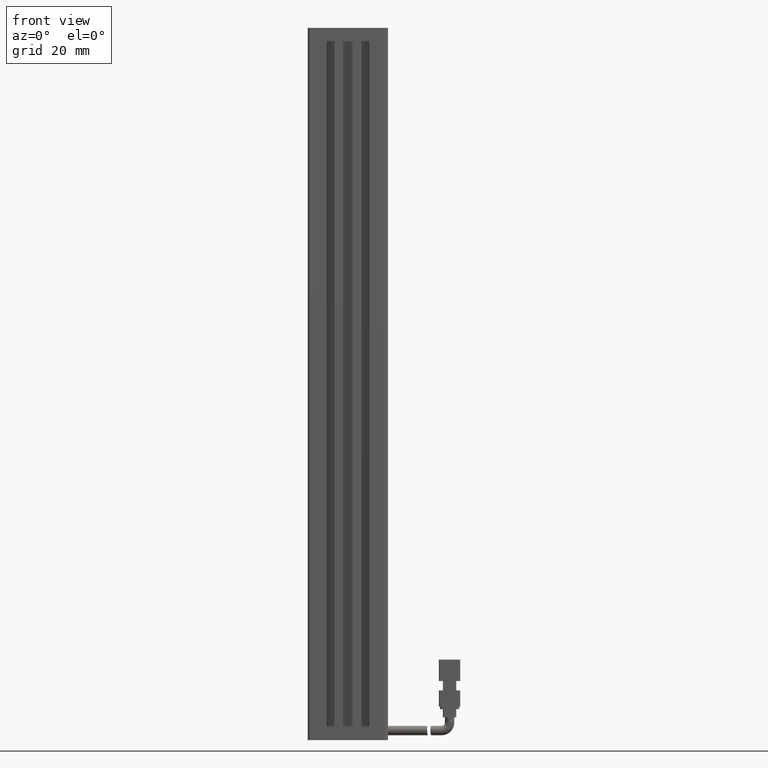
[diagram: clean part render]
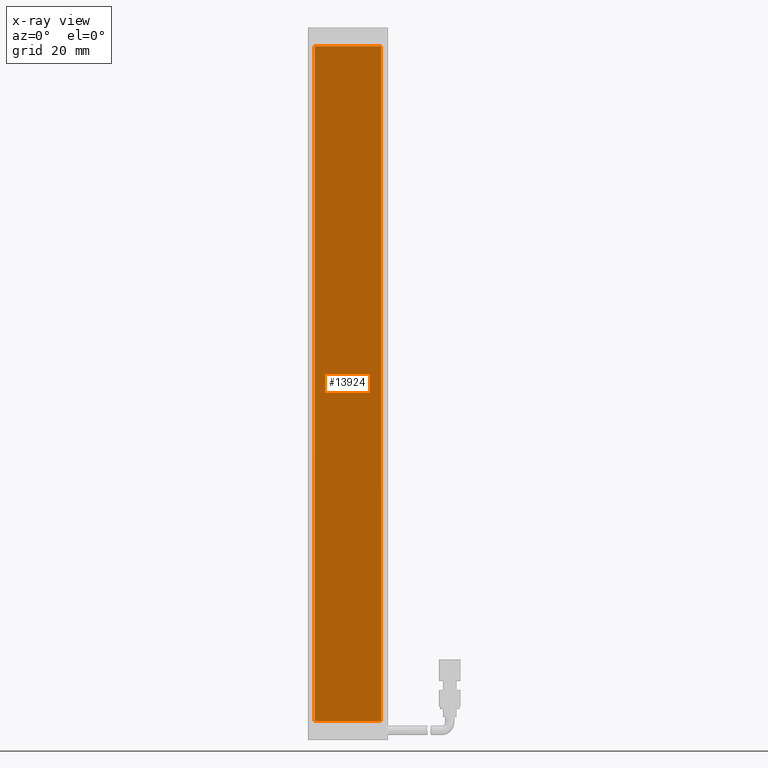
[diagram: x-ray — body ghosted, one internal face saturated and labeled with its STEP entity id]
A machine part, front view, then the same camera in x-ray: the body is ghosted and one INTERNAL B-rep face — a face not visible from any outside direction — is saturated and labeled: STEP entity #13924.
In plain terms, the highlighted planar face has unit normal (0, 1, -0).
Its self-contained STEP definition (entity closure, byte-faithful):
#1148 = LINE ( 'NONE', #33905, #22595 ) ;
#1545 = EDGE_CURVE ( 'NONE', #22205, #42509, #14859, .T. ) ;
#3575 = VECTOR ( 'NONE', #33617, 1000.000000000000000 ) ;
#12555 = CARTESIAN_POINT ( 'NONE',  ( 53.32537974683541600, 20.19594479660386800, 11.14999999999999300 ) ) ;
#13924 = ADVANCED_FACE ( 'NONE', ( #35016 ), #15360, .F. ) ;
#14231 = ORIENTED_EDGE ( 'NONE', *, *, #16877, .F. ) ;
#14667 = DIRECTION ( 'NONE',  ( -1.000000000000000000, 7.380418287155808400E-032, 0.0000000000000000000 ) ) ;
#14737 = VERTEX_POINT ( 'NONE', #16464 ) ;
#14809 = DIRECTION ( 'NONE',  ( 7.380418287155808400E-032, 1.000000000000000000, -0.0000000000000000000 ) ) ;
#14824 = CARTESIAN_POINT ( 'NONE',  ( 40.92537974683541800, 20.19594479660386800, -114.8499999999999400 ) ) ;
#14859 = LINE ( 'NONE', #21244, #37612 ) ;
#14976 = LINE ( 'NONE', #54927, #3575 ) ;
#15360 = PLANE ( 'NONE',  #52141 ) ;
#16148 = ORIENTED_EDGE ( 'NONE', *, *, #29789, .F. ) ;
#16464 = CARTESIAN_POINT ( 'NONE',  ( 28.52537974683541600, 20.19594479660386800, -240.8500000000000200 ) ) ;
#16877 = EDGE_CURVE ( 'NONE', #14737, #33683, #19806, .T. ) ;
#16978 = DIRECTION ( 'NONE',  ( -1.000000000000000000, 7.380418287155808400E-032, 0.0000000000000000000 ) ) ;
#18479 = VECTOR ( 'NONE', #38050, 1000.000000000000000 ) ;
#19806 = LINE ( 'NONE', #37143, #18479 ) ;
#20097 = ORIENTED_EDGE ( 'NONE', *, *, #43875, .F. ) ;
#21076 = DIRECTION ( 'NONE',  ( -0.0000000000000000000, -0.0000000000000000000, -1.000000000000000000 ) ) ;
#21244 = CARTESIAN_POINT ( 'NONE',  ( 53.32537974683541600, 20.19594479660386800, -114.8499999999999400 ) ) ;
#22205 = VERTEX_POINT ( 'NONE', #12555 ) ;
#22595 = VECTOR ( 'NONE', #16978, 1000.000000000000000 ) ;
#26168 = CARTESIAN_POINT ( 'NONE',  ( 28.52537974683541600, 20.19594479660386800, 11.14999999999999300 ) ) ;
#29789 = EDGE_CURVE ( 'NONE', #42509, #14737, #1148, .T. ) ;
#33617 = DIRECTION ( 'NONE',  ( 1.000000000000000000, -7.380418287155808400E-032, -0.0000000000000000000 ) ) ;
#33683 = VERTEX_POINT ( 'NONE', #26168 ) ;
#33905 = CARTESIAN_POINT ( 'NONE',  ( 40.92537974683541800, 20.19594479660386800, -240.8500000000000200 ) ) ;
#35016 = FACE_OUTER_BOUND ( 'NONE', #40972, .T. ) ;
#37143 = CARTESIAN_POINT ( 'NONE',  ( 28.52537974683541600, 20.19594479660386800, -114.8499999999999400 ) ) ;
#37612 = VECTOR ( 'NONE', #21076, 1000.000000000000000 ) ;
#38050 = DIRECTION ( 'NONE',  ( 0.0000000000000000000, 0.0000000000000000000, 1.000000000000000000 ) ) ;
#40972 = EDGE_LOOP ( 'NONE', ( #14231, #16148, #54241, #20097 ) ) ;
#42509 = VERTEX_POINT ( 'NONE', #48749 ) ;
#43875 = EDGE_CURVE ( 'NONE', #33683, #22205, #14976, .T. ) ;
#48749 = CARTESIAN_POINT ( 'NONE',  ( 53.32537974683541600, 20.19594479660386800, -240.8500000000000200 ) ) ;
#52141 = AXIS2_PLACEMENT_3D ( 'NONE', #14824, #14809, #14667 ) ;
#54241 = ORIENTED_EDGE ( 'NONE', *, *, #1545, .F. ) ;
#54927 = CARTESIAN_POINT ( 'NONE',  ( 40.92537974683541800, 20.19594479660386800, 11.14999999999999300 ) ) ;